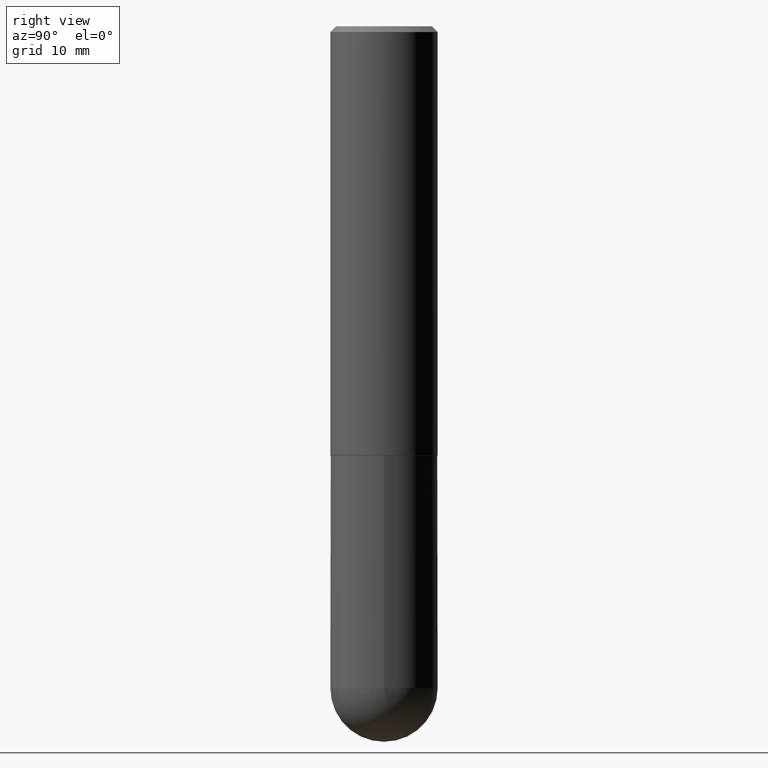
[diagram: clean part render]
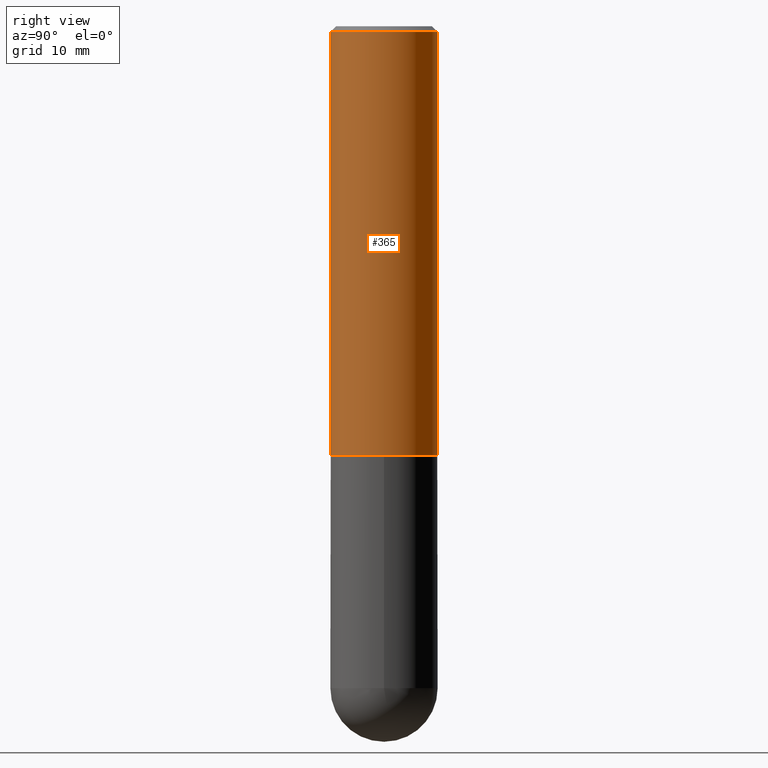
[diagram: same view with one face highlighted and labeled with its STEP entity id]
A machine part, right view. The second image highlights one B-rep face of the part: STEP entity #365.
In plain terms, the highlighted cylindrical surface (partial cylindrical patch) has radius 4.7625 mm, axis along (-0, 0, 1).
Its self-contained STEP definition (entity closure, byte-faithful):
#6 = CIRCLE ( 'NONE', #172, 0.1875000000000001388 ) ;
#16 = EDGE_CURVE ( 'NONE', #361, #175, #163, .T. ) ;
#20 = DIRECTION ( 'NONE',  ( -2.444237772899634714E-29, 3.493244248574047893E-15, 1.000000000000000000 ) ) ;
#31 = DIRECTION ( 'NONE',  ( -2.444237772899634714E-29, 3.493244248574047893E-15, 1.000000000000000000 ) ) ;
#32 = VECTOR ( 'NONE', #193, 39.37007874015748143 ) ;
#42 = EDGE_CURVE ( 'NONE', #102, #339, #62, .T. ) ;
#56 = DIRECTION ( 'NONE',  ( -6.982962677686266711E-15, -1.000000000000000000, 3.483106191921935949E-15 ) ) ;
#62 = LINE ( 'NONE', #256, #32 ) ;
#80 = CARTESIAN_POINT ( 'NONE',  ( -1.309305502066139312E-15, -0.1875000000000053846, -1.498999999999999444 ) ) ;
#87 = DIRECTION ( 'NONE',  ( -2.444237772899634994E-29, 3.493244248574047893E-15, 1.000000000000000000 ) ) ;
#102 = VERTEX_POINT ( 'NONE', #80 ) ;
#115 = CARTESIAN_POINT ( 'NONE',  ( 4.888475545799278045E-31, -6.986488497148108654E-17, -0.02000000000000003858 ) ) ;
#122 = VECTOR ( 'NONE', #87, 39.37007874015748143 ) ;
#127 = DIRECTION ( 'NONE',  ( -2.444237772899634714E-29, 3.493244248574047893E-15, 1.000000000000000000 ) ) ;
#129 = CARTESIAN_POINT ( 'NONE',  ( 3.663912421576552546E-29, -5.236373128612498345E-15, -1.499000000000000110 ) ) ;
#148 = AXIS2_PLACEMENT_3D ( 'NONE', #115, #20, #56 ) ;
#151 = ORIENTED_EDGE ( 'NONE', *, *, #16, .T. ) ;
#159 = CARTESIAN_POINT ( 'NONE',  ( 1.332267629550207176E-15, 0.1874999999999949207, -1.499000000000000554 ) ) ;
#163 = LINE ( 'NONE', #408, #122 ) ;
#164 = DIRECTION ( 'NONE',  ( -6.982962677686266711E-15, -1.000000000000000000, 2.913971193241878794E-15 ) ) ;
#172 = AXIS2_PLACEMENT_3D ( 'NONE', #129, #127, #164 ) ;
#175 = VERTEX_POINT ( 'NONE', #407 ) ;
#177 = EDGE_CURVE ( 'NONE', #339, #175, #396, .T. ) ;
#192 = CARTESIAN_POINT ( 'NONE',  ( 0.000000000000000000, 0.000000000000000000, 0.000000000000000000 ) ) ;
#193 = DIRECTION ( 'NONE',  ( -2.444237772899634994E-29, 3.493244248574047893E-15, 1.000000000000000000 ) ) ;
#227 = FACE_OUTER_BOUND ( 'NONE', #230, .T. ) ;
#230 = EDGE_LOOP ( 'NONE', ( #288, #151, #412, #376 ) ) ;
#256 = CARTESIAN_POINT ( 'NONE',  ( -1.309305502066175205E-15, -0.1875000000000000555, 6.549832966076341771E-16 ) ) ;
#288 = ORIENTED_EDGE ( 'NONE', *, *, #289, .T. ) ;
#289 = EDGE_CURVE ( 'NONE', #102, #361, #6, .T. ) ;
#290 = CYLINDRICAL_SURFACE ( 'NONE', #302, 0.1875000000000000555 ) ;
#302 = AXIS2_PLACEMENT_3D ( 'NONE', #192, #31, #317 ) ;
#317 = DIRECTION ( 'NONE',  ( -6.982962677686265922E-15, -1.000000000000000000, 3.493244248574047893E-15 ) ) ;
#339 = VERTEX_POINT ( 'NONE', #382 ) ;
#361 = VERTEX_POINT ( 'NONE', #159 ) ;
#365 = ADVANCED_FACE ( 'NONE', ( #227 ), #290, .T. ) ;
#376 = ORIENTED_EDGE ( 'NONE', *, *, #42, .F. ) ;
#382 = CARTESIAN_POINT ( 'NONE',  ( -1.286343374582161379E-15, -0.1875000000000000555, -0.01999999999999938632 ) ) ;
#396 = CIRCLE ( 'NONE', #148, 0.1874999999999999722 ) ;
#407 = CARTESIAN_POINT ( 'NONE',  ( 1.309305502066175205E-15, 0.1874999999999999167, -0.02000000000000069084 ) ) ;
#408 = CARTESIAN_POINT ( 'NONE',  ( 1.332267629550188046E-15, 0.1875000000000000555, -6.549832966076341771E-16 ) ) ;
#412 = ORIENTED_EDGE ( 'NONE', *, *, #177, .F. ) ;